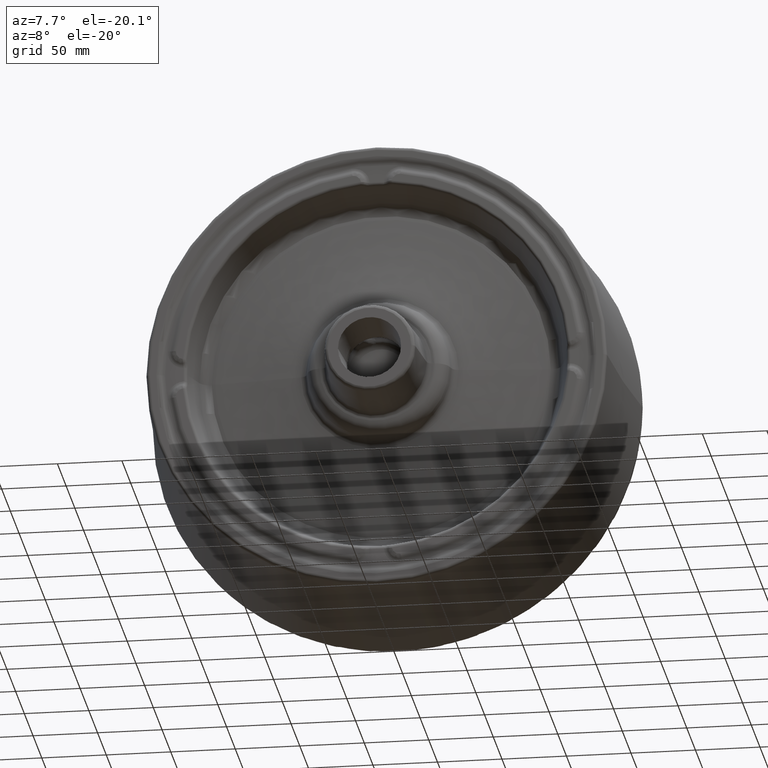
[diagram: clean part render]
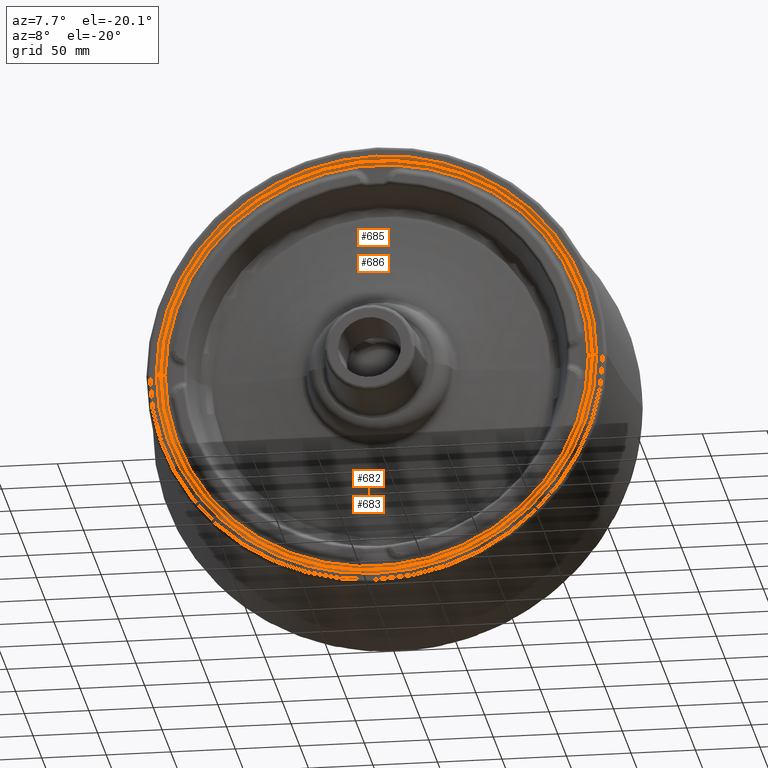
[diagram: same view with one multi-face feature highlighted, each face labeled with its STEP entity id]
A machine part, auxiliary view. The highlighted faces form ONE feature: a constant-radius fillet chain: 4 tangent blend faces with common blend radius 6 mm. The faces share edges in the B-rep.
Their STEP definitions:
[1] entity #686 (Torus):
#482=TOROIDAL_SURFACE('',#6312,164.027864045,6.);
#686=ADVANCED_FACE('',(#1255),#482,.F.);
#1255=FACE_OUTER_BOUND('',#1670,.T.);
#1670=EDGE_LOOP('',(#2573,#2574,#2575,#2576));
#2573=ORIENTED_EDGE('',*,*,#4951,.F.);
#2574=ORIENTED_EDGE('',*,*,#4935,.F.);
#2575=ORIENTED_EDGE('',*,*,#4950,.T.);
#2576=ORIENTED_EDGE('',*,*,#4959,.F.);
#4387=VERTEX_POINT('',#8631);
#4388=VERTEX_POINT('',#8632);
#4401=VERTEX_POINT('',#8661);
#4402=VERTEX_POINT('',#8663);
#4935=EDGE_CURVE('',#4387,#4388,#5852,.T.);
#4950=EDGE_CURVE('',#4387,#4401,#5867,.T.);
#4951=EDGE_CURVE('',#4388,#4402,#5868,.T.);
#4959=EDGE_CURVE('',#4402,#4401,#5876,.T.);
#5852=CIRCLE('',#6282,164.027864045);
#5867=CIRCLE('',#6298,6.);
#5868=CIRCLE('',#6299,6.);
#5876=CIRCLE('',#6310,167.3444888354);
#6282=AXIS2_PLACEMENT_3D('',#8630,#6993,#6994);
#6298=AXIS2_PLACEMENT_3D('',#8660,#7025,#7026);
#6299=AXIS2_PLACEMENT_3D('',#8662,#7027,#7028);
#6310=AXIS2_PLACEMENT_3D('',#8678,#7049,#7050);
#6312=AXIS2_PLACEMENT_3D('',#8680,#7053,#7054);
#6993=DIRECTION('',(0.,-1.,0.));
#6994=DIRECTION('',(1.,0.,0.));
#7025=DIRECTION('',(2.531183812896E-014,0.,-1.));
#7026=DIRECTION('',(0.552770798392605,0.833333333333308,1.39916449713297E-014));
#7027=DIRECTION('',(-2.46912272529E-014,0.,1.));
#7028=DIRECTION('',(-0.552770798392605,0.833333333333308,-1.36485894018788E-014));
#7049=DIRECTION('',(0.,1.,0.));
#7050=DIRECTION('',(-1.,0.,-2.4522188987E-014));
#7053=DIRECTION('',(0.,-1.,0.));
#7054=DIRECTION('',(-0.999999997722317,0.,6.74934534115611E-005));
#8630=CARTESIAN_POINT('',(0.,2.,0.));
#8631=CARTESIAN_POINT('',(164.027864045,2.,-1.031764928282E-014));
#8632=CARTESIAN_POINT('',(-164.027864045,2.,0.));
#8660=CARTESIAN_POINT('',(164.027864045,-4.,4.151847268763E-012));
#8661=CARTESIAN_POINT('',(167.3444888354,1.,4.272778734053E-012));
#8662=CARTESIAN_POINT('',(-164.027864045,-4.,-4.050048491022E-012));
#8663=CARTESIAN_POINT('',(-167.3444888354,1.,-4.103653181153E-012));
#8678=CARTESIAN_POINT('',(0.,1.,0.));
#8680=CARTESIAN_POINT('',(0.,-4.,0.));
[2] entity #685 (Torus):
#481=TOROIDAL_SURFACE('',#6311,170.6611136257,6.);
#685=ADVANCED_FACE('',(#1254),#481,.T.);
#1254=FACE_OUTER_BOUND('',#1669,.T.);
#1669=EDGE_LOOP('',(#2569,#2570,#2571,#2572));
#2569=ORIENTED_EDGE('',*,*,#4954,.F.);
#2570=ORIENTED_EDGE('',*,*,#4959,.T.);
#2571=ORIENTED_EDGE('',*,*,#4953,.T.);
#2572=ORIENTED_EDGE('',*,*,#4958,.F.);
#4401=VERTEX_POINT('',#8661);
#4402=VERTEX_POINT('',#8663);
#4403=VERTEX_POINT('',#8667);
#4404=VERTEX_POINT('',#8669);
#4953=EDGE_CURVE('',#4401,#4403,#5870,.T.);
#4954=EDGE_CURVE('',#4402,#4404,#5871,.T.);
#4958=EDGE_CURVE('',#4404,#4403,#5875,.T.);
#4959=EDGE_CURVE('',#4402,#4401,#5876,.T.);
#5870=CIRCLE('',#6302,6.);
#5871=CIRCLE('',#6303,6.);
#5875=CIRCLE('',#6308,170.6611136257);
#5876=CIRCLE('',#6310,167.3444888354);
#6302=AXIS2_PLACEMENT_3D('',#8666,#7033,#7034);
#6303=AXIS2_PLACEMENT_3D('',#8668,#7035,#7036);
#6308=AXIS2_PLACEMENT_3D('',#8676,#7045,#7046);
#6310=AXIS2_PLACEMENT_3D('',#8678,#7049,#7050);
#6311=AXIS2_PLACEMENT_3D('',#8679,#7051,#7052);
#7033=DIRECTION('',(-2.509017299479E-014,0.,1.));
#7034=DIRECTION('',(-3.23815048849004E-014,-1.,-7.88860905221012E-028));
#7035=DIRECTION('',(2.541369892306E-014,0.,-1.));
#7036=DIRECTION('',(3.70074341541719E-014,-1.,9.20337722757847E-028));
#7045=DIRECTION('',(0.,1.,0.));
#7046=DIRECTION('',(-1.,0.,-2.369464936664E-014));
#7049=DIRECTION('',(0.,1.,0.));
#7050=DIRECTION('',(-1.,0.,-2.4522188987E-014));
#7051=DIRECTION('',(0.,-1.,0.));
#7052=DIRECTION('',(0.999972420747554,0.,0.00742682598936766));
#8661=CARTESIAN_POINT('',(167.3444888354,1.,4.272778734053E-012));
#8663=CARTESIAN_POINT('',(-167.3444888354,1.,-4.103653181153E-012));
#8666=CARTESIAN_POINT('',(170.6611136257,6.,4.281908161374E-012));
#8667=CARTESIAN_POINT('',(170.6611136257,2.904619455851E-014,3.761500170126E-012));
#8668=CARTESIAN_POINT('',(-170.6611136257,6.,-4.336975223396E-012));
#8669=CARTESIAN_POINT('',(-170.6611136257,9.174607052071E-014,-4.043755247881E-012));
#8676=CARTESIAN_POINT('',(0.,6.039613253961E-014,0.));
#8678=CARTESIAN_POINT('',(0.,1.,0.));
#8679=CARTESIAN_POINT('',(0.,6.,0.));
[3] entity #683 (Torus):
#480=TOROIDAL_SURFACE('',#6305,170.6611136257,6.);
#683=ADVANCED_FACE('',(#1253),#480,.T.);
#1253=FACE_OUTER_BOUND('',#1666,.T.);
#1666=EDGE_LOOP('',(#2561,#2562,#2563,#2564));
#2561=ORIENTED_EDGE('',*,*,#4953,.F.);
#2562=ORIENTED_EDGE('',*,*,#4952,.T.);
#2563=ORIENTED_EDGE('',*,*,#4954,.T.);
#2564=ORIENTED_EDGE('',*,*,#4955,.F.);
#4401=VERTEX_POINT('',#8661);
#4402=VERTEX_POINT('',#8663);
#4403=VERTEX_POINT('',#8667);
#4404=VERTEX_POINT('',#8669);
#4952=EDGE_CURVE('',#4401,#4402,#5869,.T.);
#4953=EDGE_CURVE('',#4401,#4403,#5870,.T.);
#4954=EDGE_CURVE('',#4402,#4404,#5871,.T.);
#4955=EDGE_CURVE('',#4403,#4404,#5872,.T.);
#5869=CIRCLE('',#6300,167.3444888354);
#5870=CIRCLE('',#6302,6.);
#5871=CIRCLE('',#6303,6.);
#5872=CIRCLE('',#6304,170.6611136257);
#6300=AXIS2_PLACEMENT_3D('',#8664,#7029,#7030);
#6302=AXIS2_PLACEMENT_3D('',#8666,#7033,#7034);
#6303=AXIS2_PLACEMENT_3D('',#8668,#7035,#7036);
#6304=AXIS2_PLACEMENT_3D('',#8670,#7037,#7038);
#6305=AXIS2_PLACEMENT_3D('',#8671,#7039,#7040);
#7029=DIRECTION('',(0.,1.,0.));
#7030=DIRECTION('',(1.,0.,2.508876304607E-014));
#7033=DIRECTION('',(-2.509017299479E-014,0.,1.));
#7034=DIRECTION('',(-3.23815048849004E-014,-1.,-7.88860905221012E-028));
#7035=DIRECTION('',(2.541369892306E-014,0.,-1.));
#7036=DIRECTION('',(3.70074341541719E-014,-1.,9.20337722757847E-028));
#7037=DIRECTION('',(0.,1.,0.));
#7038=DIRECTION('',(1.,0.,2.159406779377E-014));
#7039=DIRECTION('',(0.,-1.,0.));
#7040=DIRECTION('',(-0.999972420747554,0.,-0.00742682598936866));
#8661=CARTESIAN_POINT('',(167.3444888354,1.,4.272778734053E-012));
#8663=CARTESIAN_POINT('',(-167.3444888354,1.,-4.103653181153E-012));
#8664=CARTESIAN_POINT('',(0.,1.,0.));
#8666=CARTESIAN_POINT('',(170.6611136257,6.,4.281908161374E-012));
#8667=CARTESIAN_POINT('',(170.6611136257,2.904619455851E-014,3.761500170126E-012));
#8668=CARTESIAN_POINT('',(-170.6611136257,6.,-4.336975223396E-012));
#8669=CARTESIAN_POINT('',(-170.6611136257,9.174607052071E-014,-4.043755247881E-012));
#8670=CARTESIAN_POINT('',(0.,6.039613253961E-014,0.));
#8671=CARTESIAN_POINT('',(0.,6.,0.));
[4] entity #682 (Torus):
#479=TOROIDAL_SURFACE('',#6301,164.027864045,6.);
#682=ADVANCED_FACE('',(#1252),#479,.F.);
#1252=FACE_OUTER_BOUND('',#1665,.T.);
#1665=EDGE_LOOP('',(#2557,#2558,#2559,#2560));
#2557=ORIENTED_EDGE('',*,*,#4950,.F.);
#2558=ORIENTED_EDGE('',*,*,#4936,.F.);
#2559=ORIENTED_EDGE('',*,*,#4951,.T.);
#2560=ORIENTED_EDGE('',*,*,#4952,.F.);
#4387=VERTEX_POINT('',#8631);
#4388=VERTEX_POINT('',#8632);
#4401=VERTEX_POINT('',#8661);
#4402=VERTEX_POINT('',#8663);
#4936=EDGE_CURVE('',#4388,#4387,#5853,.T.);
#4950=EDGE_CURVE('',#4387,#4401,#5867,.T.);
#4951=EDGE_CURVE('',#4388,#4402,#5868,.T.);
#4952=EDGE_CURVE('',#4401,#4402,#5869,.T.);
#5853=CIRCLE('',#6283,164.027864045);
#5867=CIRCLE('',#6298,6.);
#5868=CIRCLE('',#6299,6.);
#5869=CIRCLE('',#6300,167.3444888354);
#6283=AXIS2_PLACEMENT_3D('',#8633,#6995,#6996);
#6298=AXIS2_PLACEMENT_3D('',#8660,#7025,#7026);
#6299=AXIS2_PLACEMENT_3D('',#8662,#7027,#7028);
#6300=AXIS2_PLACEMENT_3D('',#8664,#7029,#7030);
#6301=AXIS2_PLACEMENT_3D('',#8665,#7031,#7032);
#6995=DIRECTION('',(0.,-1.,0.));
#6996=DIRECTION('',(-1.,0.,0.));
#7025=DIRECTION('',(2.531183812896E-014,0.,-1.));
#7026=DIRECTION('',(0.552770798392605,0.833333333333308,1.39916449713297E-014));
#7027=DIRECTION('',(-2.46912272529E-014,0.,1.));
#7028=DIRECTION('',(-0.552770798392605,0.833333333333308,-1.36485894018788E-014));
#7029=DIRECTION('',(0.,1.,0.));
#7030=DIRECTION('',(1.,0.,2.508876304607E-014));
#7031=DIRECTION('',(0.,-1.,0.));
#7032=DIRECTION('',(0.999999997781218,0.,-6.66150428127112E-005));
#8631=CARTESIAN_POINT('',(164.027864045,2.,-1.031764928282E-014));
#8632=CARTESIAN_POINT('',(-164.027864045,2.,0.));
#8633=CARTESIAN_POINT('',(0.,2.,0.));
#8660=CARTESIAN_POINT('',(164.027864045,-4.,4.151847268763E-012));
#8661=CARTESIAN_POINT('',(167.3444888354,1.,4.272778734053E-012));
#8662=CARTESIAN_POINT('',(-164.027864045,-4.,-4.050048491022E-012));
#8663=CARTESIAN_POINT('',(-167.3444888354,1.,-4.103653181153E-012));
#8664=CARTESIAN_POINT('',(0.,1.,0.));
#8665=CARTESIAN_POINT('',(0.,-4.,0.));